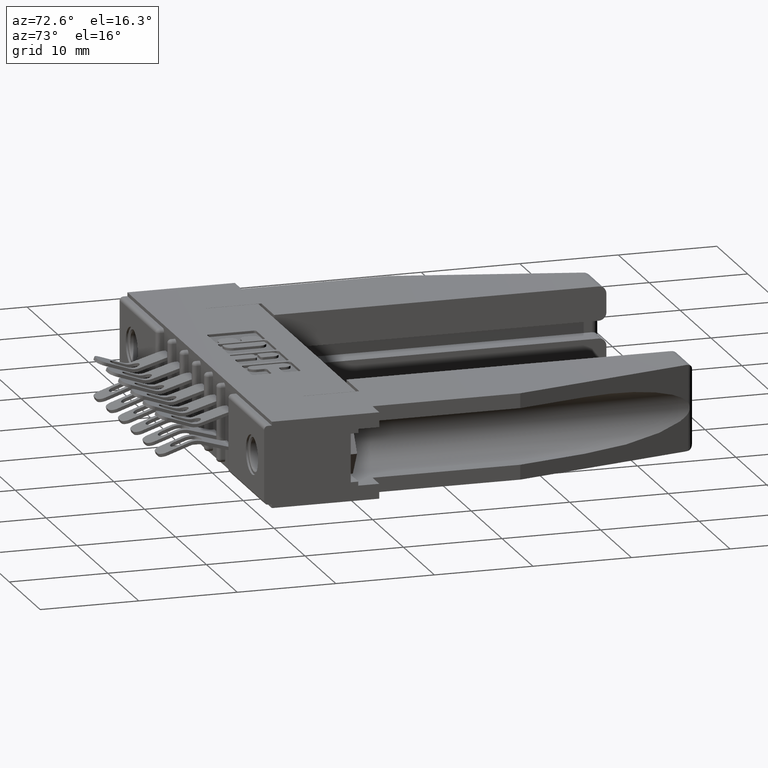
[diagram: clean part render]
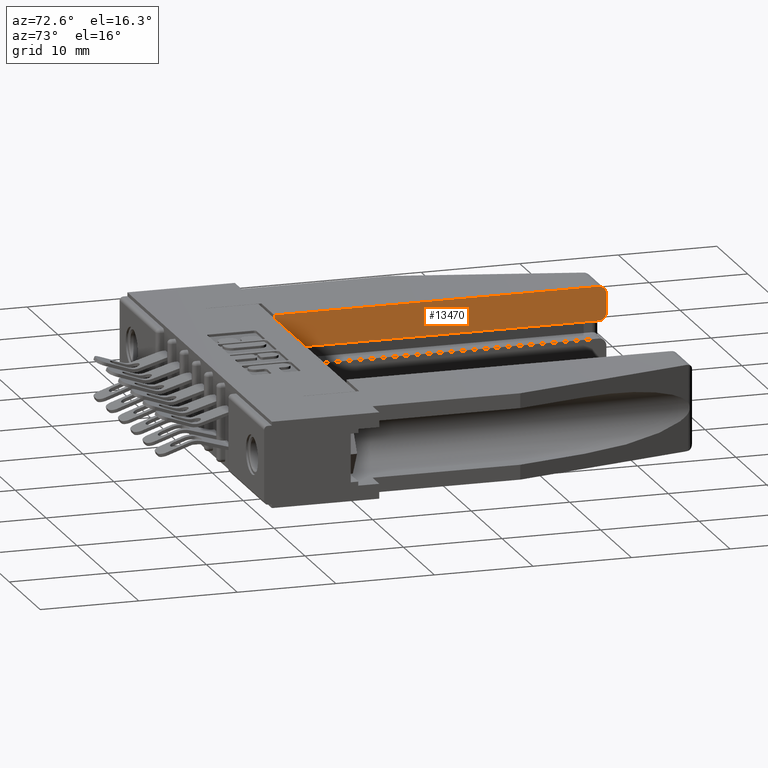
[diagram: same view with one face highlighted and labeled with its STEP entity id]
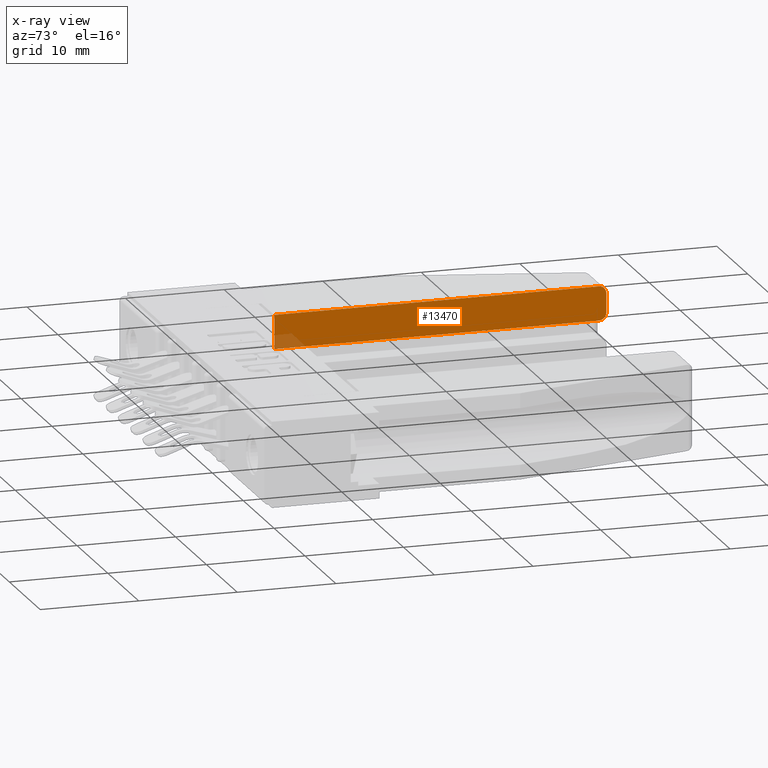
[diagram: x-ray of the same camera — body ghosted, the highlighted face saturated]
A machine part, auxiliary view. The second image highlights one B-rep face of the part: STEP entity #13470.
The next image is the same camera in x-ray: the body ghosted, the highlighted face saturated — about 3% of this face is hidden behind the body in this view.
In plain terms, the highlighted planar face has unit normal (1, -0, 0).
Its self-contained STEP definition (entity closure, byte-faithful):
#10 = LINE ( 'NONE', #295, #5229 ) ;
#11 = ORIENTED_EDGE ( 'NONE', *, *, #8597, .F. ) ;
#295 = CARTESIAN_POINT ( 'NONE',  ( 0.4610000000000000800, 1.550000000000000000, -0.3430000000000000300 ) ) ;
#337 = DIRECTION ( 'NONE',  ( 1.000000000000000000, -5.146661630867112300E-017, 0.0000000000000000000 ) ) ;
#883 = LINE ( 'NONE', #6122, #6278 ) ;
#1099 = ORIENTED_EDGE ( 'NONE', *, *, #4156, .T. ) ;
#1111 = EDGE_LOOP ( 'NONE', ( #5186, #1099, #13313, #11, #7519, #10627 ) ) ;
#1177 = CARTESIAN_POINT ( 'NONE',  ( 0.4610000000000000800, 1.550000000000000000, -0.1060000000000000400 ) ) ;
#1542 = AXIS2_PLACEMENT_3D ( 'NONE', #4354, #12789, #9586 ) ;
#2344 = CARTESIAN_POINT ( 'NONE',  ( 0.4610000000000000200, 0.2230000000000000300, 0.0000000000000000000 ) ) ;
#2468 = PLANE ( 'NONE',  #6633 ) ;
#2925 = CARTESIAN_POINT ( 'NONE',  ( 0.4610000000000000800, 1.519999999999999600, -0.1360000000000000400 ) ) ;
#4156 = EDGE_CURVE ( 'NONE', #12608, #4450, #10193, .T. ) ;
#4160 = DIRECTION ( 'NONE',  ( 0.0000000000000000000, 1.000000000000000000, 0.0000000000000000000 ) ) ;
#4279 = EDGE_CURVE ( 'NONE', #13260, #8109, #11585, .T. ) ;
#4354 = CARTESIAN_POINT ( 'NONE',  ( 0.4610000000000000800, 1.520000000000000200, -0.02999999999999999900 ) ) ;
#4450 = VERTEX_POINT ( 'NONE', #11227 ) ;
#4521 = DIRECTION ( 'NONE',  ( 0.0000000000000000000, 0.0000000000000000000, 1.000000000000000000 ) ) ;
#4976 = DIRECTION ( 'NONE',  ( -5.146661630867112300E-017, -1.000000000000000000, -6.433327038583891200E-017 ) ) ;
#5186 = ORIENTED_EDGE ( 'NONE', *, *, #8729, .T. ) ;
#5229 = VECTOR ( 'NONE', #4521, 39.37007874015748100 ) ;
#5362 = CARTESIAN_POINT ( 'NONE',  ( 0.4610000000000000800, 1.520000000000000200, -0.1060000000000000200 ) ) ;
#6055 = VERTEX_POINT ( 'NONE', #7998 ) ;
#6122 = CARTESIAN_POINT ( 'NONE',  ( 0.4610000000000000200, 0.2230000000000000300, -0.1360000000000001200 ) ) ;
#6210 = EDGE_CURVE ( 'NONE', #6907, #4450, #7469, .T. ) ;
#6278 = VECTOR ( 'NONE', #4976, 39.37007874015748100 ) ;
#6633 = AXIS2_PLACEMENT_3D ( 'NONE', #10019, #337, #8948 ) ;
#6751 = EDGE_CURVE ( 'NONE', #13260, #6055, #883, .T. ) ;
#6907 = VERTEX_POINT ( 'NONE', #2344 ) ;
#7469 = LINE ( 'NONE', #9173, #8139 ) ;
#7519 = ORIENTED_EDGE ( 'NONE', *, *, #6751, .F. ) ;
#7590 = VECTOR ( 'NONE', #8546, 39.37007874015748100 ) ;
#7607 = CARTESIAN_POINT ( 'NONE',  ( 0.4610000000000000200, 0.2230000000000000300, -0.3430000000000000300 ) ) ;
#7684 = FACE_OUTER_BOUND ( 'NONE', #1111, .T. ) ;
#7698 = CARTESIAN_POINT ( 'NONE',  ( 0.4610000000000000800, 1.550000000000000000, -0.03000000000000002300 ) ) ;
#7998 = CARTESIAN_POINT ( 'NONE',  ( 0.4610000000000000200, 0.2230000000000000300, -0.1360000000000001200 ) ) ;
#8109 = VERTEX_POINT ( 'NONE', #1177 ) ;
#8139 = VECTOR ( 'NONE', #10198, 39.37007874015748100 ) ;
#8546 = DIRECTION ( 'NONE',  ( 0.0000000000000000000, 0.0000000000000000000, 1.000000000000000000 ) ) ;
#8597 = EDGE_CURVE ( 'NONE', #6055, #6907, #9093, .T. ) ;
#8729 = EDGE_CURVE ( 'NONE', #8109, #12608, #10, .T. ) ;
#8948 = DIRECTION ( 'NONE',  ( 5.146661630867112300E-017, 1.000000000000000000, 0.0000000000000000000 ) ) ;
#9093 = LINE ( 'NONE', #7607, #7590 ) ;
#9173 = CARTESIAN_POINT ( 'NONE',  ( 0.4610000000000000200, 0.2230000000000000300, 0.0000000000000000000 ) ) ;
#9198 = AXIS2_PLACEMENT_3D ( 'NONE', #5362, #11871, #4160 ) ;
#9586 = DIRECTION ( 'NONE',  ( 0.0000000000000000000, 1.000000000000000000, 0.0000000000000000000 ) ) ;
#10019 = CARTESIAN_POINT ( 'NONE',  ( 0.4610000000000000200, 0.2230000000000000300, -0.3430000000000000300 ) ) ;
#10193 = CIRCLE ( 'NONE', #1542, 0.02999999999999995400 ) ;
#10198 = DIRECTION ( 'NONE',  ( 5.146661630867112300E-017, 1.000000000000000000, 0.0000000000000000000 ) ) ;
#10627 = ORIENTED_EDGE ( 'NONE', *, *, #4279, .T. ) ;
#11227 = CARTESIAN_POINT ( 'NONE',  ( 0.4610000000000000800, 1.519999999999999600, 0.0000000000000000000 ) ) ;
#11585 = CIRCLE ( 'NONE', #9198, 0.02999999999999995400 ) ;
#11871 = DIRECTION ( 'NONE',  ( 1.000000000000000000, -5.146661630867112300E-017, 0.0000000000000000000 ) ) ;
#12608 = VERTEX_POINT ( 'NONE', #7698 ) ;
#12789 = DIRECTION ( 'NONE',  ( 1.000000000000000000, -5.146661630867112300E-017, 0.0000000000000000000 ) ) ;
#13260 = VERTEX_POINT ( 'NONE', #2925 ) ;
#13313 = ORIENTED_EDGE ( 'NONE', *, *, #6210, .F. ) ;
#13470 = ADVANCED_FACE ( 'NONE', ( #7684 ), #2468, .T. ) ;